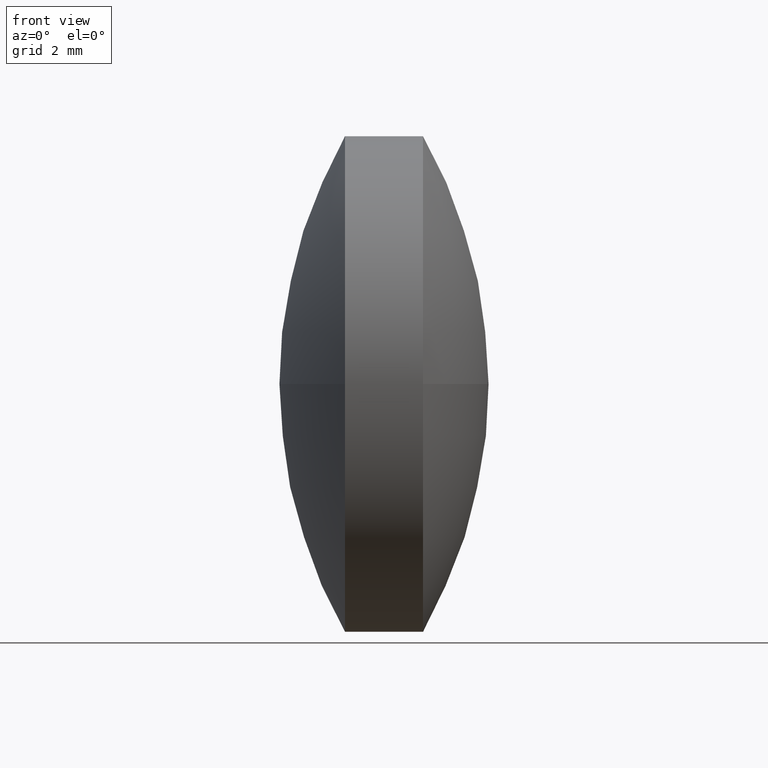
[diagram: clean part render]
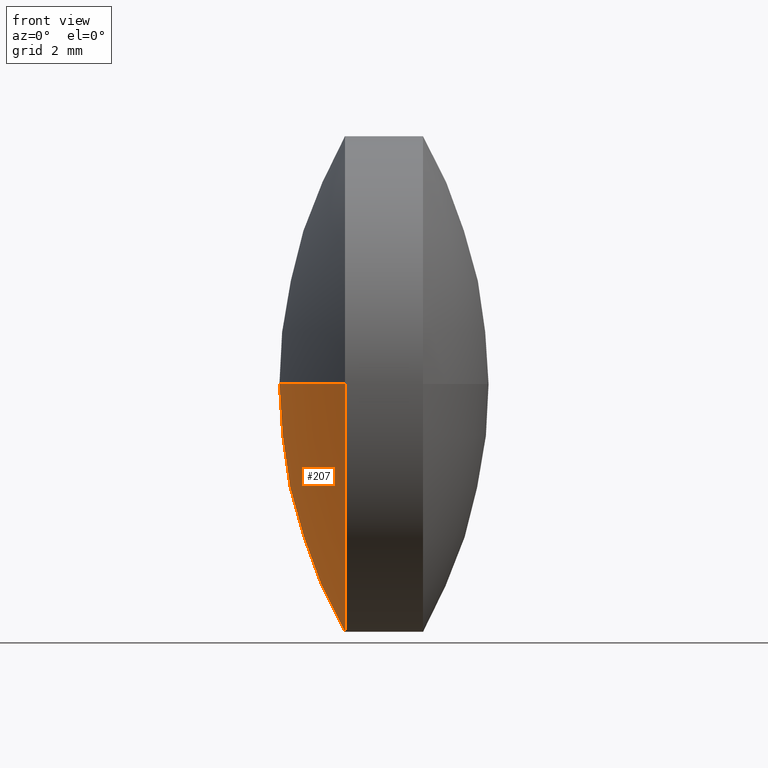
[diagram: same view with one face highlighted and labeled with its STEP entity id]
A machine part, front view. The second image highlights one B-rep face of the part: STEP entity #207.
In plain terms, the highlighted spherical surface has radius 12.8425 mm.
Its self-contained STEP definition (entity closure, byte-faithful):
#2 = EDGE_CURVE ( 'NONE', #47, #90, #146, .T. ) ;
#8 = AXIS2_PLACEMENT_3D ( 'NONE', #274, #305, #254 ) ;
#15 = CARTESIAN_POINT ( 'NONE',  ( 42.22761479768103500, 17.95744082790685400, -7.776240560623605200E-016 ) ) ;
#17 = AXIS2_PLACEMENT_3D ( 'NONE', #117, #171, #33 ) ;
#25 = VERTEX_POINT ( 'NONE', #196 ) ;
#33 = DIRECTION ( 'NONE',  ( 1.000000000000000000, 0.0000000000000000000, 0.0000000000000000000 ) ) ;
#47 = VERTEX_POINT ( 'NONE', #277 ) ;
#64 = DIRECTION ( 'NONE',  ( -0.0000000000000000000, 0.0000000000000000000, -1.000000000000000000 ) ) ;
#69 = EDGE_CURVE ( 'NONE', #25, #137, #105, .T. ) ;
#86 = SPHERICAL_SURFACE ( 'NONE', #211, 12.84252496801103400 ) ;
#90 = VERTEX_POINT ( 'NONE', #121 ) ;
#105 = CIRCLE ( 'NONE', #8, 6.349782293178511100 ) ;
#107 = ORIENTED_EDGE ( 'NONE', *, *, #292, .T. ) ;
#117 = CARTESIAN_POINT ( 'NONE',  ( 53.39053163797073900, 24.30722312108536800, 0.0000000000000000000 ) ) ;
#121 = CARTESIAN_POINT ( 'NONE',  ( 40.54800666995970500, 24.30722312108536800, 0.0000000000000000000 ) ) ;
#128 = DIRECTION ( 'NONE',  ( 0.0000000000000000000, 1.000000000000000000, 1.224646799147353200E-016 ) ) ;
#137 = VERTEX_POINT ( 'NONE', #15 ) ;
#146 = CIRCLE ( 'NONE', #17, 12.84252496801104100 ) ;
#157 = ORIENTED_EDGE ( 'NONE', *, *, #69, .T. ) ;
#171 = DIRECTION ( 'NONE',  ( -0.0000000000000000000, 0.0000000000000000000, 1.000000000000000000 ) ) ;
#176 = DIRECTION ( 'NONE',  ( -1.000000000000000000, -0.0000000000000000000, -0.0000000000000000000 ) ) ;
#178 = CARTESIAN_POINT ( 'NONE',  ( 42.22761479768103500, 24.30722312108537200, 0.0000000000000000000 ) ) ;
#196 = CARTESIAN_POINT ( 'NONE',  ( 42.22761479768103500, 24.30722312108537200, -6.349782293178511100 ) ) ;
#207 = ADVANCED_FACE ( 'NONE', ( #232 ), #86, .T. ) ;
#211 = AXIS2_PLACEMENT_3D ( 'NONE', #315, #64, #280 ) ;
#227 = DIRECTION ( 'NONE',  ( 0.0000000000000000000, 0.0000000000000000000, 1.000000000000000000 ) ) ;
#232 = FACE_OUTER_BOUND ( 'NONE', #312, .T. ) ;
#235 = CARTESIAN_POINT ( 'NONE',  ( 53.39053163797073900, 24.30722312108536800, 0.0000000000000000000 ) ) ;
#254 = DIRECTION ( 'NONE',  ( 0.0000000000000000000, 0.0000000000000000000, 1.000000000000000000 ) ) ;
#262 = EDGE_CURVE ( 'NONE', #47, #25, #345, .T. ) ;
#274 = CARTESIAN_POINT ( 'NONE',  ( 42.22761479768103500, 24.30722312108537200, 0.0000000000000000000 ) ) ;
#277 = CARTESIAN_POINT ( 'NONE',  ( 42.22761479768103500, 30.65700541426388200, 0.0000000000000000000 ) ) ;
#278 = CIRCLE ( 'NONE', #309, 12.84252496801103400 ) ;
#280 = DIRECTION ( 'NONE',  ( 0.0000000000000000000, 1.000000000000000000, 0.0000000000000000000 ) ) ;
#284 = ORIENTED_EDGE ( 'NONE', *, *, #262, .T. ) ;
#286 = DIRECTION ( 'NONE',  ( 0.0000000000000000000, 1.224646799147353200E-016, -1.000000000000000000 ) ) ;
#292 = EDGE_CURVE ( 'NONE', #137, #90, #278, .T. ) ;
#305 = DIRECTION ( 'NONE',  ( -1.000000000000000000, -0.0000000000000000000, -0.0000000000000000000 ) ) ;
#306 = AXIS2_PLACEMENT_3D ( 'NONE', #178, #176, #227 ) ;
#309 = AXIS2_PLACEMENT_3D ( 'NONE', #235, #286, #128 ) ;
#312 = EDGE_LOOP ( 'NONE', ( #284, #157, #107, #330 ) ) ;
#315 = CARTESIAN_POINT ( 'NONE',  ( 53.39053163797073900, 24.30722312108536800, 0.0000000000000000000 ) ) ;
#330 = ORIENTED_EDGE ( 'NONE', *, *, #2, .F. ) ;
#345 = CIRCLE ( 'NONE', #306, 6.349782293178511100 ) ;